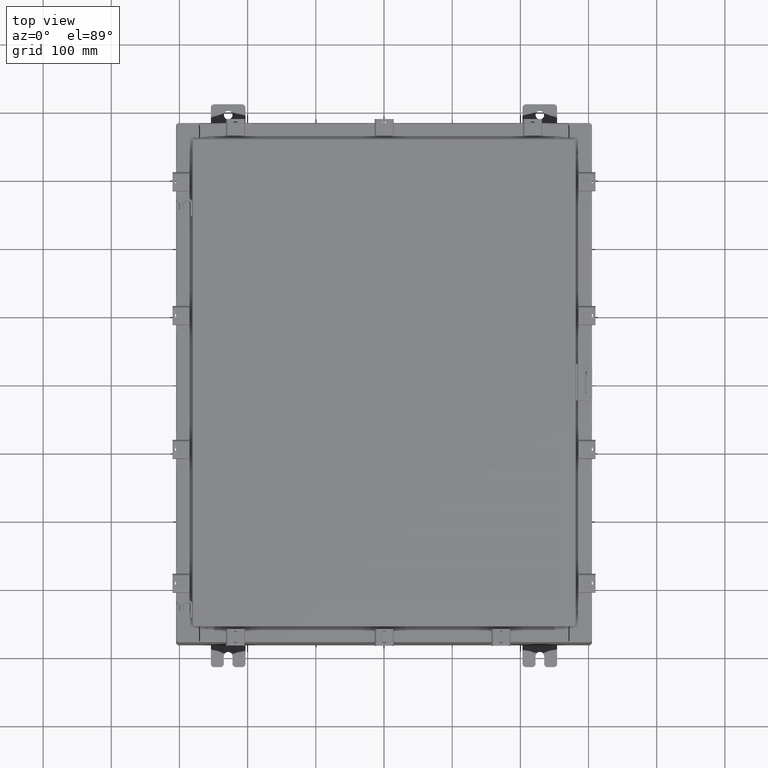
[diagram: clean part render]
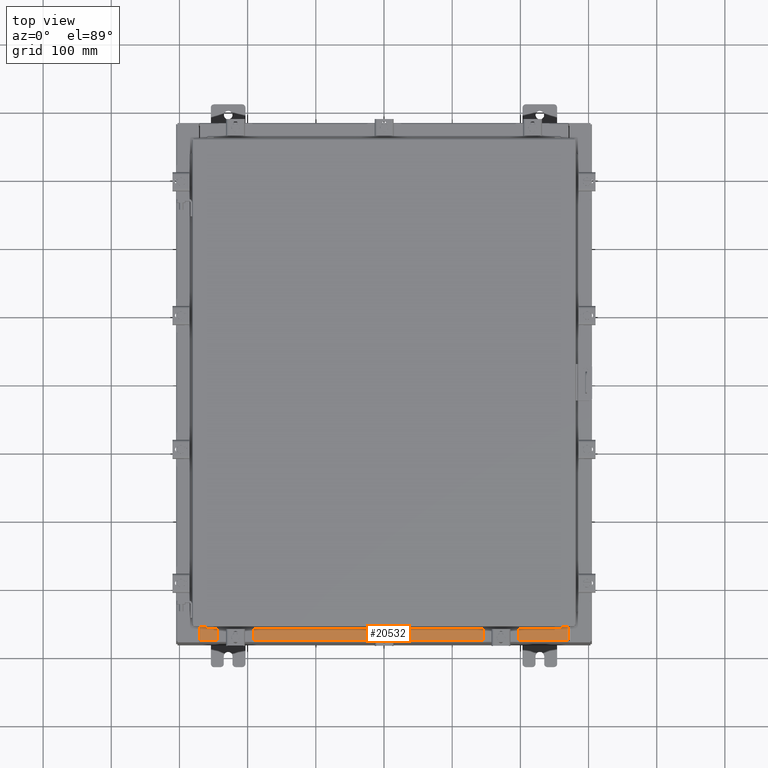
[diagram: same view with one face highlighted and labeled with its STEP entity id]
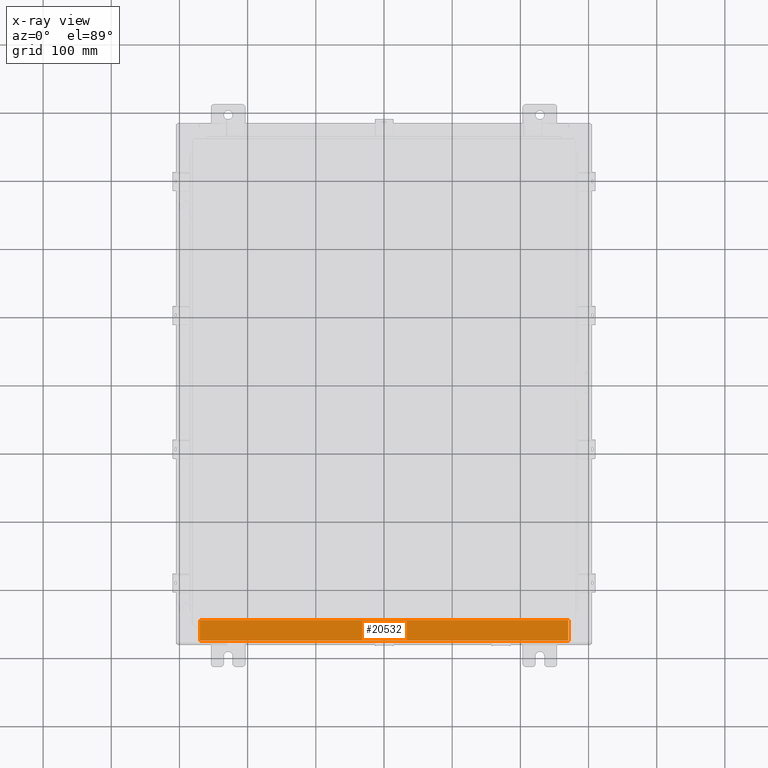
[diagram: x-ray of the same camera — body ghosted, the highlighted face saturated]
A machine part, top view. The second image highlights one B-rep face of the part: STEP entity #20532.
The next image is the same camera in x-ray: the body ghosted, the highlighted face saturated — about 0% of this face is hidden behind the body in this view.
In plain terms, the highlighted planar face has unit normal (-0, -0, 1).
Its self-contained STEP definition (entity closure, byte-faithful):
#40 = ORIENTED_EDGE ( 'NONE', *, *, #11625, .F. ) ;
#624 = ORIENTED_EDGE ( 'NONE', *, *, #11305, .F. ) ;
#1091 = VERTEX_POINT ( 'NONE', #6291 ) ;
#1820 = CARTESIAN_POINT ( 'NONE',  ( 10.63720000000000200, -1.287299999999999900, 5.000000000000004400 ) ) ;
#2295 = LINE ( 'NONE', #21205, #15987 ) ;
#2459 = EDGE_CURVE ( 'NONE', #15248, #4740, #12153, .T. ) ;
#2787 = PLANE ( 'NONE',  #3588 ) ;
#2968 = ORIENTED_EDGE ( 'NONE', *, *, #7977, .T. ) ;
#3588 = AXIS2_PLACEMENT_3D ( 'NONE', #11652, #6384, #18928 ) ;
#3746 = VECTOR ( 'NONE', #9155, 39.37007874015748100 ) ;
#4420 = CARTESIAN_POINT ( 'NONE',  ( -10.63720000000000200, -0.08770000000000081900, 5.000000000000000000 ) ) ;
#4740 = VERTEX_POINT ( 'NONE', #21998 ) ;
#6291 = CARTESIAN_POINT ( 'NONE',  ( 10.63720000000000400, -0.08770000000000047200, 5.000000000000000000 ) ) ;
#6384 = DIRECTION ( 'NONE',  ( 0.0000000000000000000, 3.566381192773190000E-015, 1.000000000000000000 ) ) ;
#7977 = EDGE_CURVE ( 'NONE', #1091, #16203, #20021, .T. ) ;
#8697 = EDGE_LOOP ( 'NONE', ( #624, #16985, #40, #2968 ) ) ;
#9155 = DIRECTION ( 'NONE',  ( -1.000000000000000000, 0.0000000000000000000, 0.0000000000000000000 ) ) ;
#9634 = DIRECTION ( 'NONE',  ( -0.0000000000000000000, 1.000000000000000000, -3.566381192773190000E-015 ) ) ;
#10306 = DIRECTION ( 'NONE',  ( -1.000000000000000000, -5.136404305013091600E-017, 1.831837571187793700E-031 ) ) ;
#11305 = EDGE_CURVE ( 'NONE', #4740, #16203, #21613, .T. ) ;
#11623 = VECTOR ( 'NONE', #10306, 39.37007874015748100 ) ;
#11625 = EDGE_CURVE ( 'NONE', #1091, #15248, #2295, .T. ) ;
#11652 = CARTESIAN_POINT ( 'NONE',  ( 0.0000000000000000000, 1.782631094477737600E-014, 5.000000000000000000 ) ) ;
#12153 = LINE ( 'NONE', #19898, #3746 ) ;
#13896 = FACE_OUTER_BOUND ( 'NONE', #8697, .T. ) ;
#15248 = VERTEX_POINT ( 'NONE', #1820 ) ;
#15987 = VECTOR ( 'NONE', #22994, 39.37007874015748100 ) ;
#16203 = VERTEX_POINT ( 'NONE', #4420 ) ;
#16985 = ORIENTED_EDGE ( 'NONE', *, *, #2459, .F. ) ;
#18928 = DIRECTION ( 'NONE',  ( 0.0000000000000000000, -1.000000000000000000, 3.566381192773190000E-015 ) ) ;
#19898 = CARTESIAN_POINT ( 'NONE',  ( 10.63720000000000400, -1.287299999999999900, 5.000000000000003600 ) ) ;
#20021 = LINE ( 'NONE', #22837, #11623 ) ;
#20532 = ADVANCED_FACE ( 'NONE', ( #13896 ), #2787, .T. ) ;
#21205 = CARTESIAN_POINT ( 'NONE',  ( 10.63720000000000200, -1.300299999999999800, 5.000000000000004400 ) ) ;
#21613 = LINE ( 'NONE', #22158, #22175 ) ;
#21998 = CARTESIAN_POINT ( 'NONE',  ( -10.63720000000000200, -1.287299999999999200, 5.000000000000004400 ) ) ;
#22158 = CARTESIAN_POINT ( 'NONE',  ( -10.63720000000000200, -0.07469999999999973900, 5.000000000000000000 ) ) ;
#22175 = VECTOR ( 'NONE', #9634, 39.37007874015748100 ) ;
#22837 = CARTESIAN_POINT ( 'NONE',  ( 4.504626575497439200E-018, -0.08770000000000081900, 5.000000000000000000 ) ) ;
#22994 = DIRECTION ( 'NONE',  ( -0.0000000000000000000, -1.000000000000000000, 3.566381192773190000E-015 ) ) ;